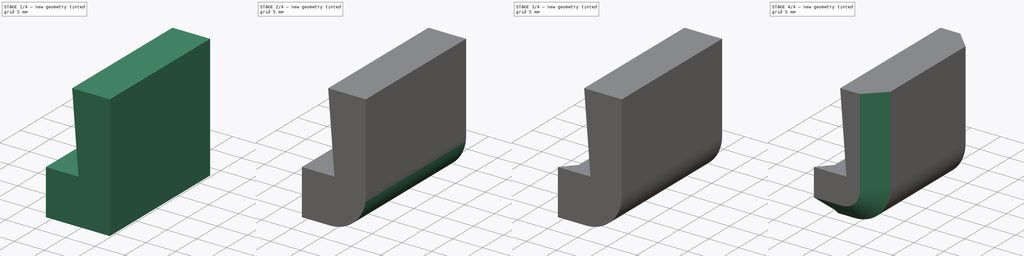
[diagram: build sequence overview — one tinted view per stage of 4, left to right]
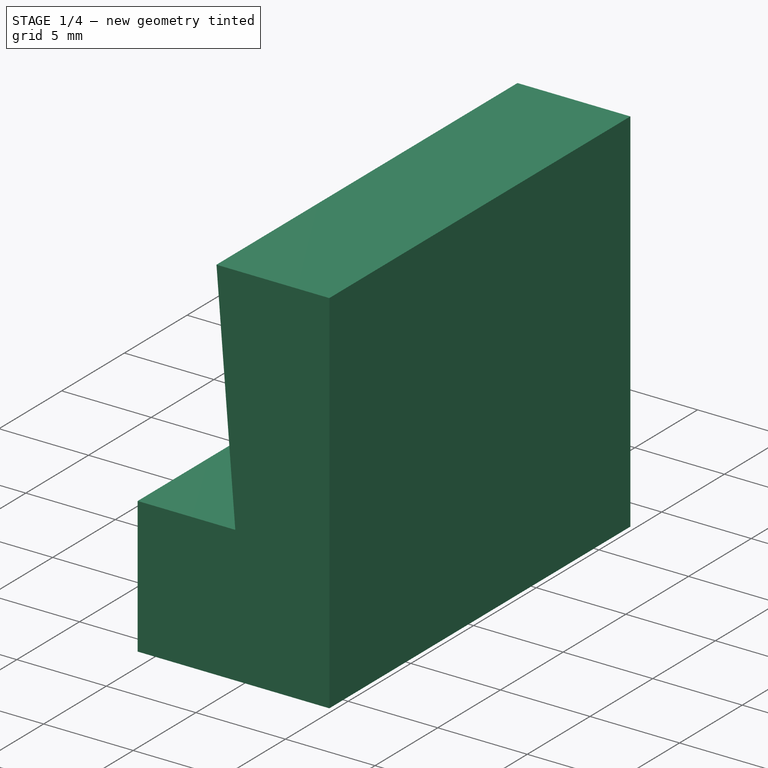
[diagram: stage 1 of 4 — iso view after this stage's code; geometry added in this stage tinted green]
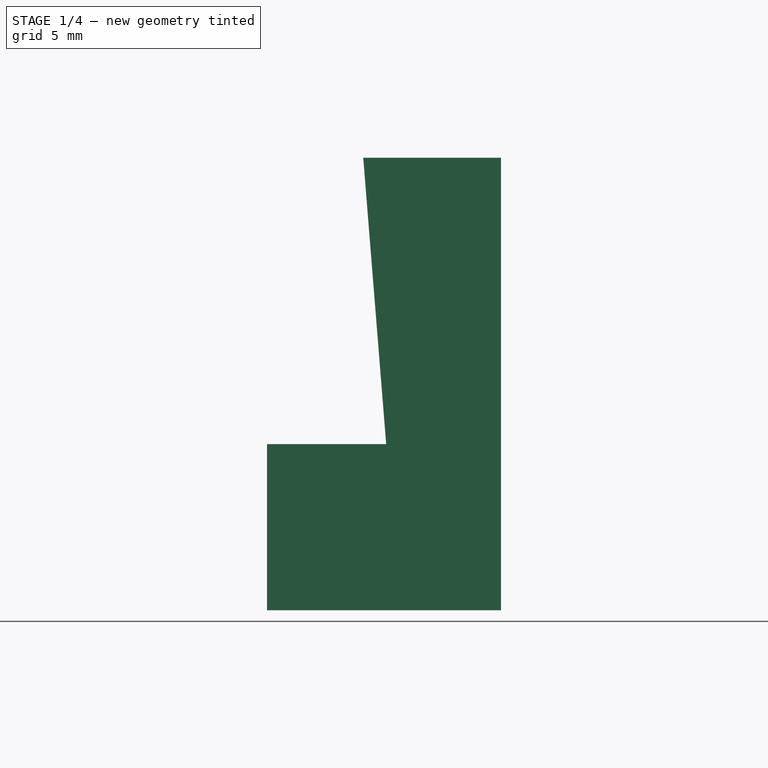
[diagram: stage 1 of 4 — front view after this stage's code; geometry added in this stage tinted green]
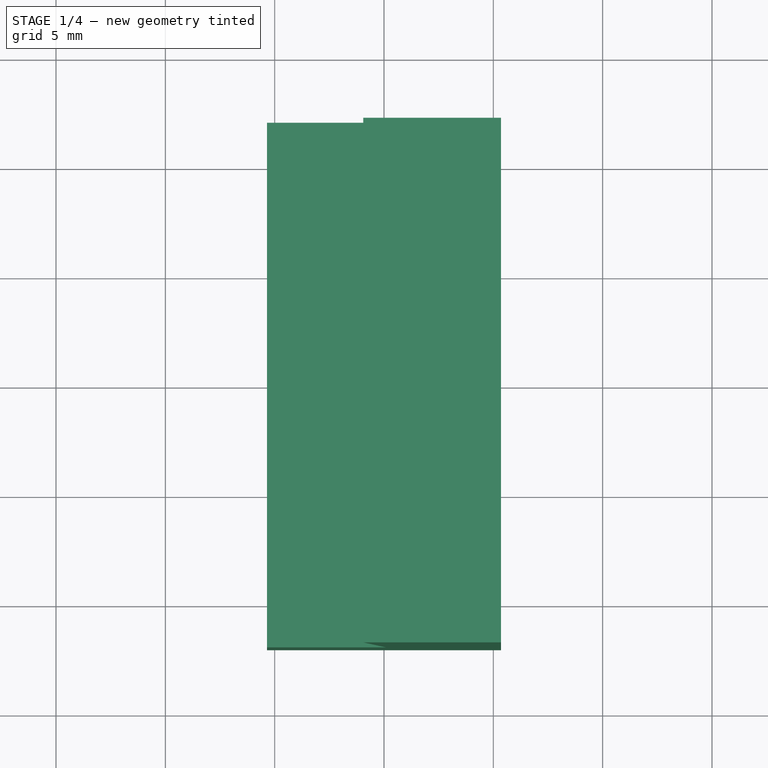
[diagram: stage 1 of 4 — top view after this stage's code; geometry added in this stage tinted green]
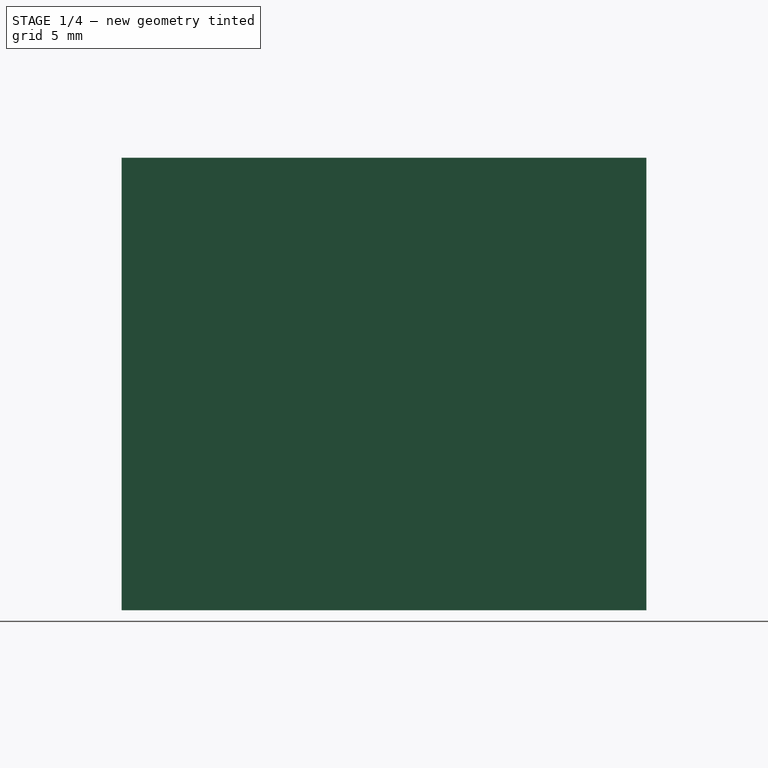
[diagram: stage 1 of 4 — right view after this stage's code; geometry added in this stage tinted green]
FCSTD DOCUMENT  (FreeCAD 0.19R24291 (Git))
Label: support_voiture
License: All rights reserved
LicenseURL: http://en.wikipedia.org/wiki/All_rights_reserved
objects: Sketcher::SketchObject×4, PartDesign::Pocket×3, PartDesign::Mirrored×2, PartDesign::Chamfer×2, PartDesign::Pad×1, PartDesign::Fillet×1, PartDesign::Body×1
note: 21 computed .brp shape members not serialized (recipe doc carries the construction recipe); baked Part::Feature solids carry a one-line shape summary decoded from their .brp

FEATURE [Sketcher::SketchObject] Sketch
  FullyConstrained = true
  MapMode = 5
  Support = -> [XY_Plane]
  sketch-geometry (4):
    g0: LineSegment StartX=-5.35 StartY=12 StartZ=0 EndX=5.35 EndY=12 EndZ=0
    g1: LineSegment StartX=5.35 StartY=12 StartZ=0 EndX=5.35 EndY=-12 EndZ=0
    g2: LineSegment StartX=5.35 StartY=-12 StartZ=0 EndX=-5.35 EndY=-12 EndZ=0
    g3: LineSegment StartX=-5.35 StartY=-12 StartZ=0 EndX=-5.35 EndY=12 EndZ=0
  constraints (10):
    c: Coincident(g0,g1)
    c: Coincident(g1,g2)
    c: Coincident(g2,g3)
    c: Coincident(g3,g0)
    c: Horizontal(g2)
    c: Vertical(g1)
    c: Symmetric(g0,g0,g-2)
    c: Symmetric(g0,g2,g-1)
    c: Distance(g0) = 10.7
    c: Distance(g3) = 24
FEATURE [PartDesign::Pad] Pad
  Direction = (1,1,1)
  Length = 20.7
  Length2 = 100
  Profile = -> Sketch
  Type = 0
FEATURE [Sketcher::SketchObject] Sketch001
  ExternalGeometry = -> [Pad]
  FullyConstrained = true
  MapMode = 5
  Placement = pos=(0,-12,0) rot=(1,0,0;1.5708rad)
  Support = -> [Pad]
  sketch-geometry (4):
    g0: LineSegment StartX=-0.95 StartY=20.7 StartZ=0 EndX=0.1 EndY=7.6 EndZ=0
    g1: LineSegment StartX=0.1 StartY=7.6 StartZ=0 EndX=-5.35 EndY=7.6 EndZ=0
    g2: LineSegment StartX=-5.35 StartY=7.6 StartZ=0 EndX=-5.35 EndY=20.7 EndZ=0
    g3: LineSegment StartX=-5.35 StartY=20.7 StartZ=0 EndX=-0.95 EndY=20.7 EndZ=0
  constraints (11):
    c: Coincident(g1,g0)
    c: PointOnObject(g1,g-3)
    c: Horizontal(g1)
    c: Distance(g-4,g1) = 7.6
    c: Distance(g0,g-5) = 5.25
    c: Coincident(g2,g1)
    c: Coincident(g2,g-6)
    c: Coincident(g3,g2)
    c: Coincident(g3,g0)
    c: Tangent(g3,g-6)
    c: Distance(g0,g2) = 4.4
FEATURE [PartDesign::Pocket] Pocket
  BaseFeature = -> Pad
  Length = 5
  Length2 = 100
  Profile = -> Sketch001
  Type = 1
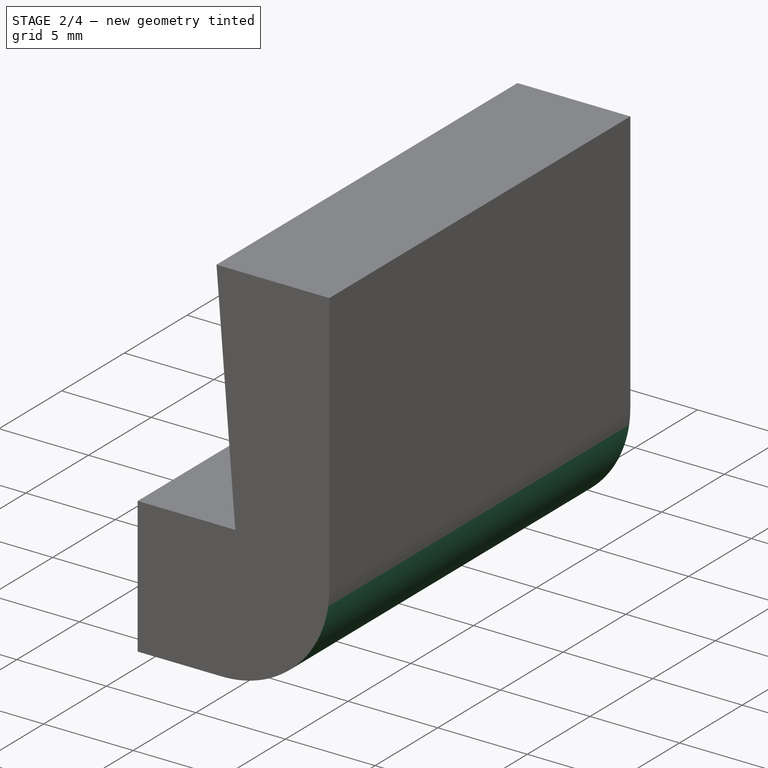
[diagram: stage 2 of 4 — iso view after this stage's code; geometry added in this stage tinted green]
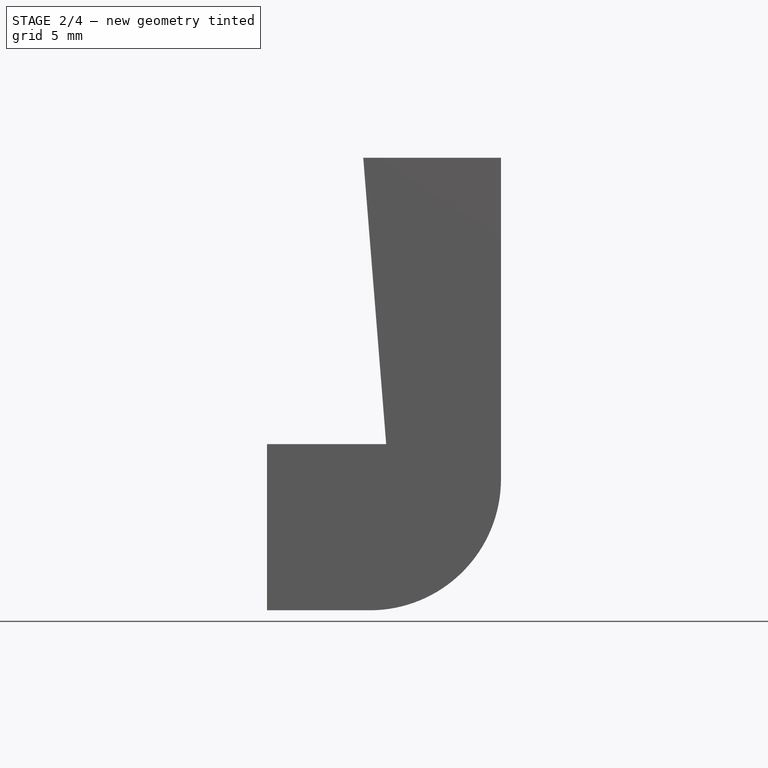
[diagram: stage 2 of 4 — front view after this stage's code; geometry added in this stage tinted green]
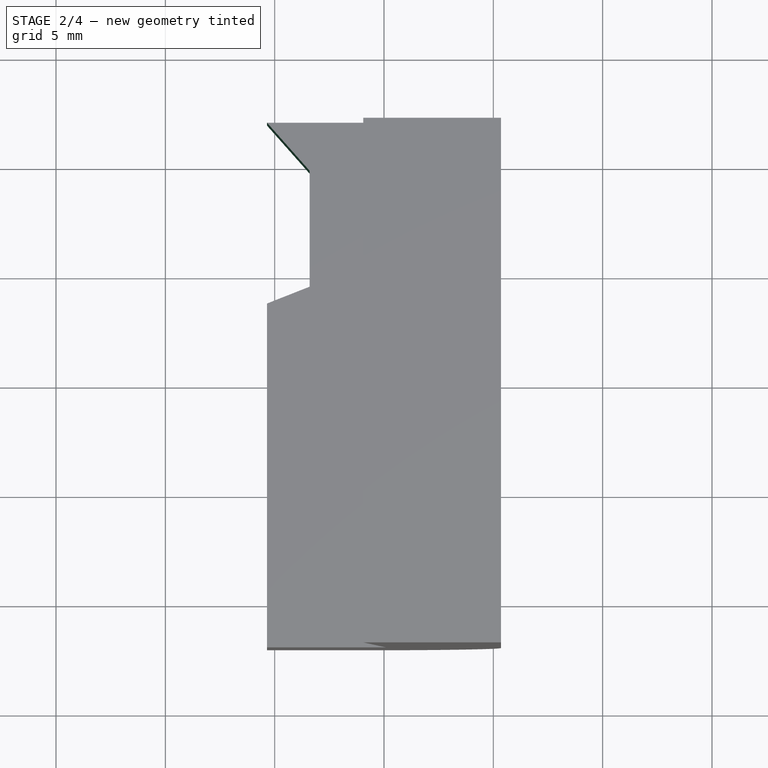
[diagram: stage 2 of 4 — top view after this stage's code; geometry added in this stage tinted green]
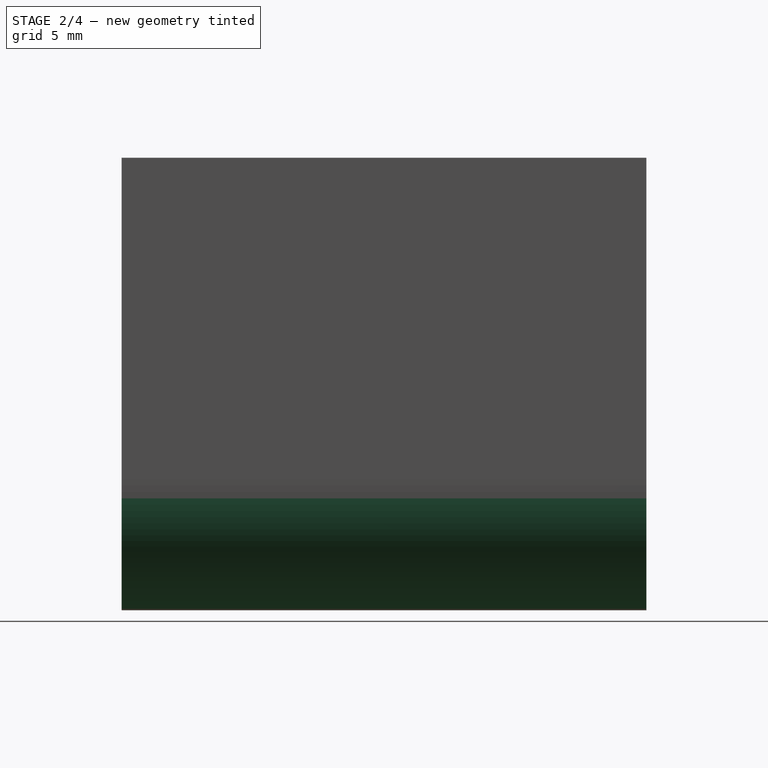
[diagram: stage 2 of 4 — right view after this stage's code; geometry added in this stage tinted green]
FEATURE [PartDesign::Fillet] Fillet
  Base = -> Pocket [Edge7]
  BaseFeature = -> Pocket
  Radius = 6
  SupportTransform = false
FEATURE [Sketcher::SketchObject] Sketch002
  ExternalGeometry = -> [Fillet]
  FullyConstrained = true
  MapMode = 5
  Placement = pos=(0,1.7e-15,7.6) rot=(0,0,1;0rad)
  Support = -> [Fillet]
  sketch-geometry (4):
    g0: LineSegment StartX=-5.35 StartY=12 StartZ=0 EndX=-3.4 EndY=9.8 EndZ=0
    g1: LineSegment StartX=-3.4 StartY=9.8 StartZ=0 EndX=-3.4 EndY=4.5 EndZ=0
    g2: LineSegment StartX=-3.4 StartY=4.5 StartZ=0 EndX=-5.35 EndY=3.73 EndZ=0
    g3: LineSegment StartX=-5.35 StartY=3.73 StartZ=0 EndX=-5.35 EndY=12 EndZ=0
  constraints (11):
    c: Coincident(g1,g0)
    c: Vertical(g1)
    c: Coincident(g2,g1)
    c: PointOnObject(g2,g-4)
    c: Coincident(g3,g2)
    c: Coincident(g3,g0)
    c: Distance(g1) = 5.3
    c: Distance(g-4,g2) = 8.27
    c: Distance(g-7,g1) = 8.75
    c: Coincident(g0,g-4)
    c: Distance(g0,g-3) = 2.2
FEATURE [PartDesign::Pocket] Pocket001
  BaseFeature = -> Fillet
  Length = 5
  Length2 = 100
  Profile = -> Sketch002
  Type = 1
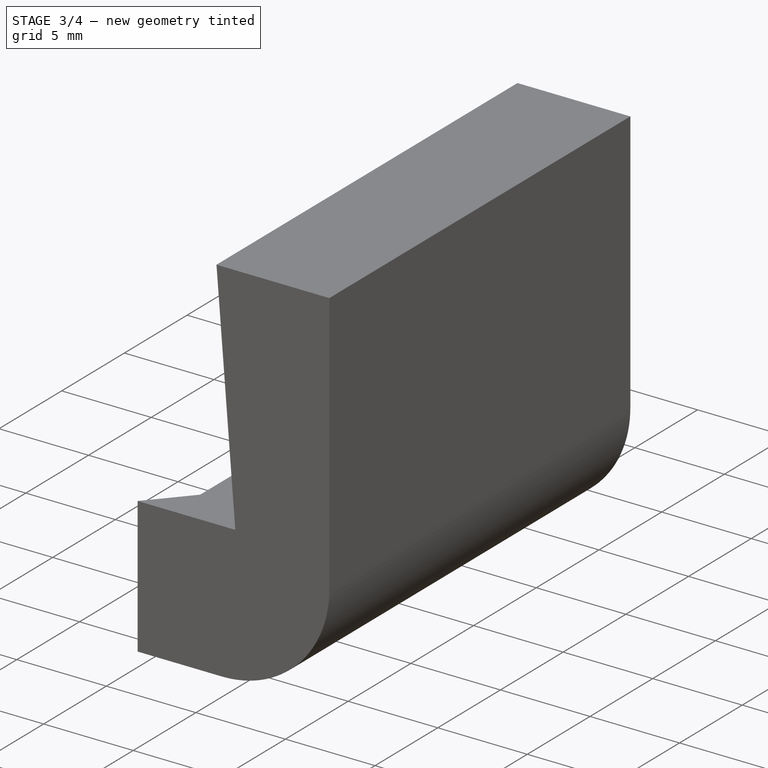
[diagram: stage 3 of 4 — iso view after this stage's code; geometry added in this stage tinted green]
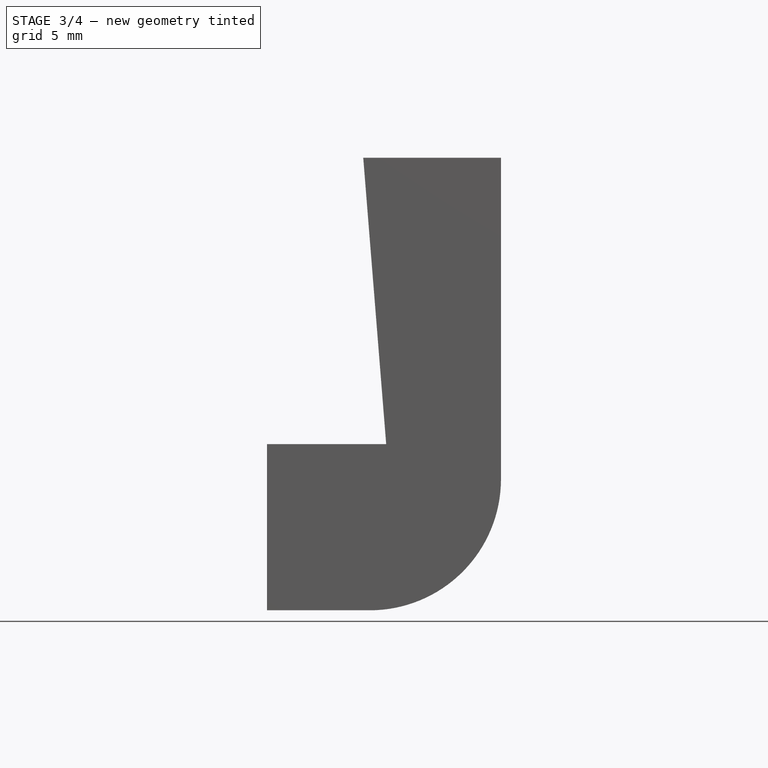
[diagram: stage 3 of 4 — front view after this stage's code; geometry added in this stage tinted green]
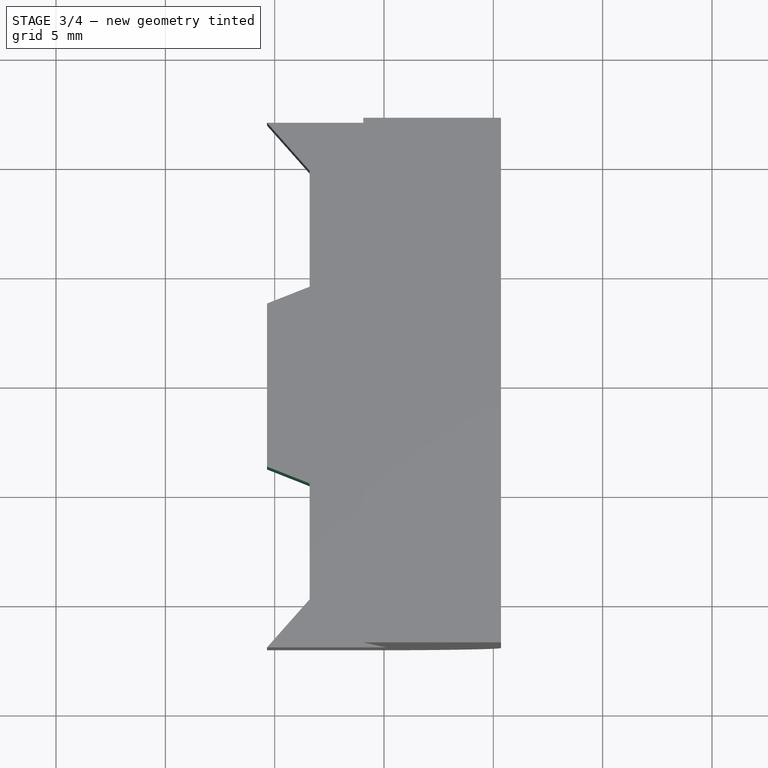
[diagram: stage 3 of 4 — top view after this stage's code; geometry added in this stage tinted green]
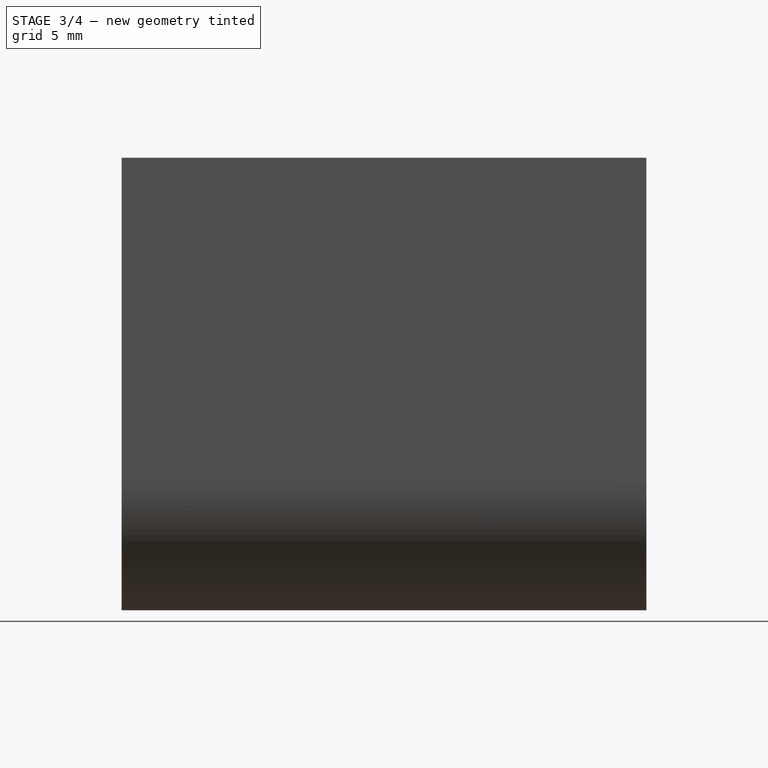
[diagram: stage 3 of 4 — right view after this stage's code; geometry added in this stage tinted green]
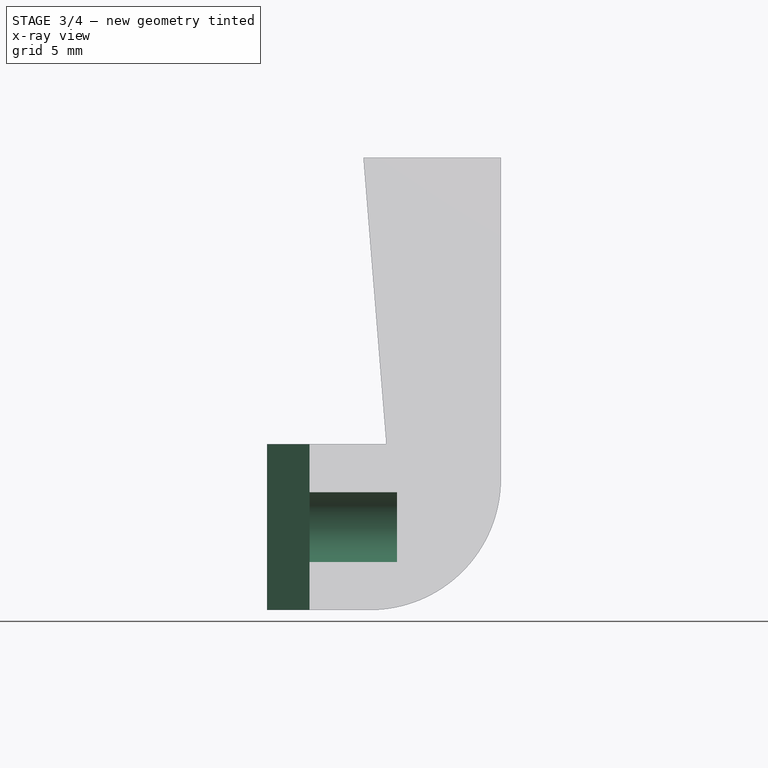
[diagram: stage 3 of 4 — x-ray composite at the front view; earlier geometry ghosted, this stage's added geometry solid]
FEATURE [PartDesign::Mirrored] Mirrored
  BaseFeature = -> Pocket001
  MirrorPlane = -> Sketch002 [H_Axis]
  Originals = -> [Pocket001]
FEATURE [Sketcher::SketchObject] Sketch003
  ExternalGeometry = -> [Mirrored]
  FullyConstrained = true
  MapMode = 5
  Placement = pos=(-3.4,0,0) rot=(0.57735,-0.57735,-0.57735;2.0944rad)
  Support = -> [Mirrored]
  sketch-geometry (1):
    g0: Circle CenterX=-7 CenterY=3.8 CenterZ=0 NormalX=0 NormalY=0 NormalZ=1 AngleXU=0 Radius=1.6
  constraints (3):
    c: Radius(g0) = 1.6
    c: Distance(g0,g-4) = 2.8
    c: Distance(g0,g-5) = 3.8
FEATURE [PartDesign::Pocket] Pocket002
  BaseFeature = -> Mirrored
  Length = 4
  Length2 = 100
  Profile = -> Sketch003
  Type = 0
FEATURE [PartDesign::Mirrored] Mirrored001
  BaseFeature = -> Pocket002
  MirrorPlane = -> Sketch003 [V_Axis]
  Originals = -> [Pocket002]
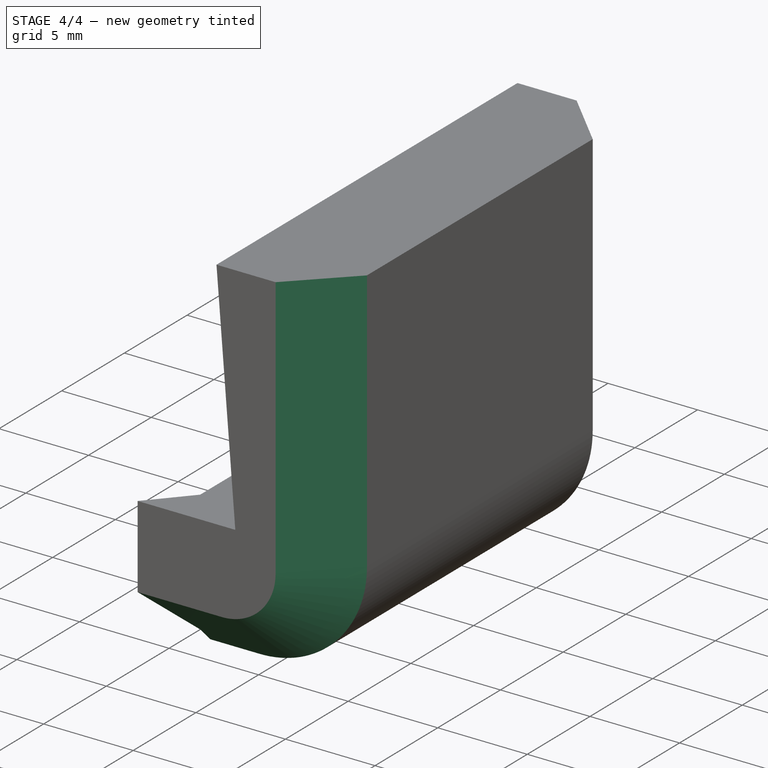
[diagram: stage 4 of 4 — iso view after this stage's code; geometry added in this stage tinted green]
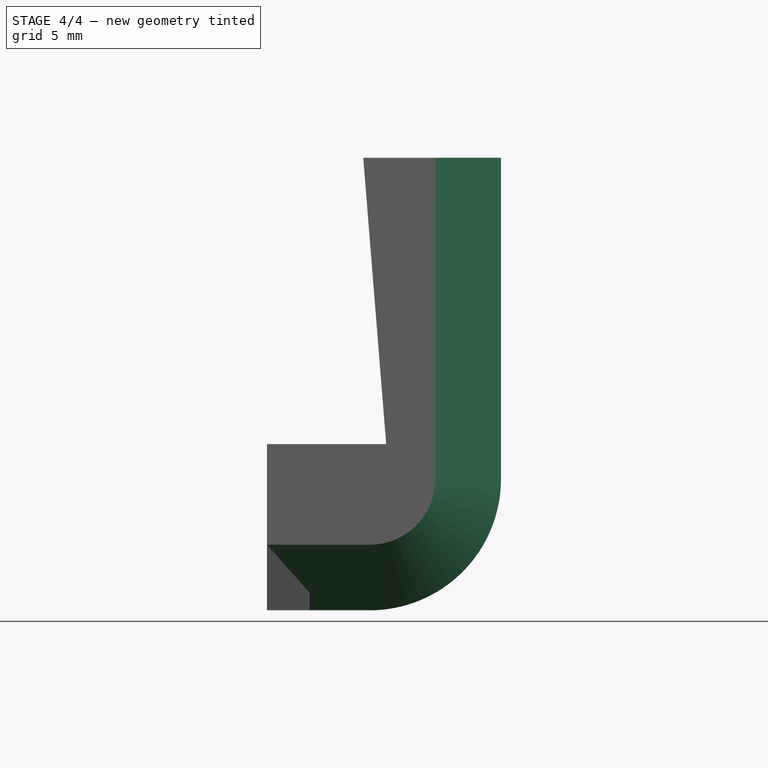
[diagram: stage 4 of 4 — front view after this stage's code; geometry added in this stage tinted green]
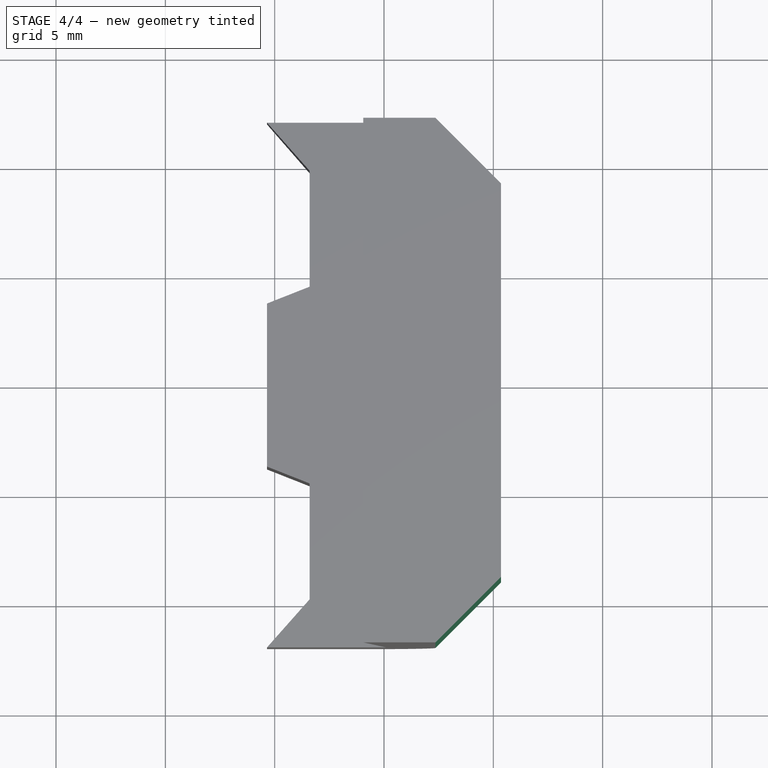
[diagram: stage 4 of 4 — top view after this stage's code; geometry added in this stage tinted green]
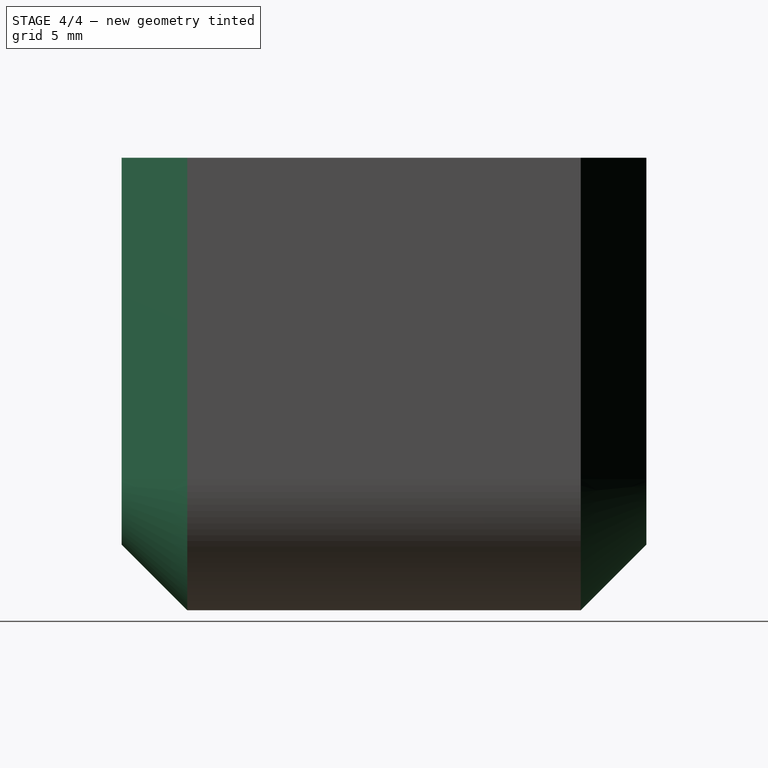
[diagram: stage 4 of 4 — right view after this stage's code; geometry added in this stage tinted green]
FEATURE [PartDesign::Chamfer] Chamfer
  Angle = 45
  Base = -> Mirrored001 [Edge22]
  BaseFeature = -> Mirrored001
  ChamferType = 0
  FlipDirection = false
  Size = 3
  Size2 = 1
  SupportTransform = false
FEATURE [PartDesign::Chamfer] Chamfer001
  Angle = 45
  Base = -> Chamfer [Edge26]
  BaseFeature = -> Chamfer
  ChamferType = 0
  FlipDirection = false
  Size = 3
  Size2 = 1
  SupportTransform = false
FEATURE [PartDesign::Body] Body
  Group = -> [Sketch,Pad,Sketch001,Pocket,Fillet,Sketch002,Pocket001,Mirrored,Sketch003,Pocket002,Mirrored001,Chamfer,Chamfer001]
  Origin = -> Origin
  Tip = -> Chamfer001
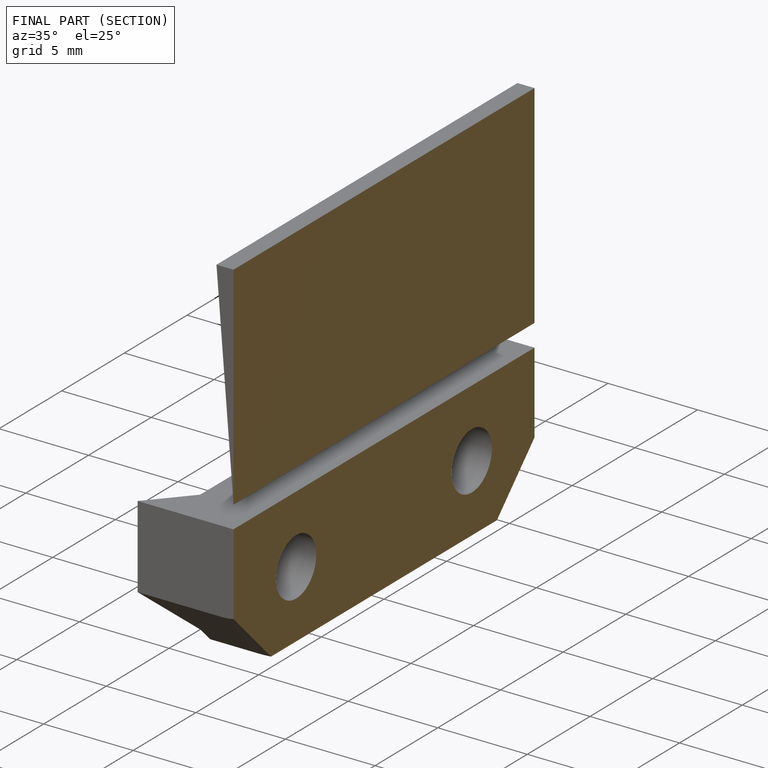
[diagram: finished part — half-section view (interior)]
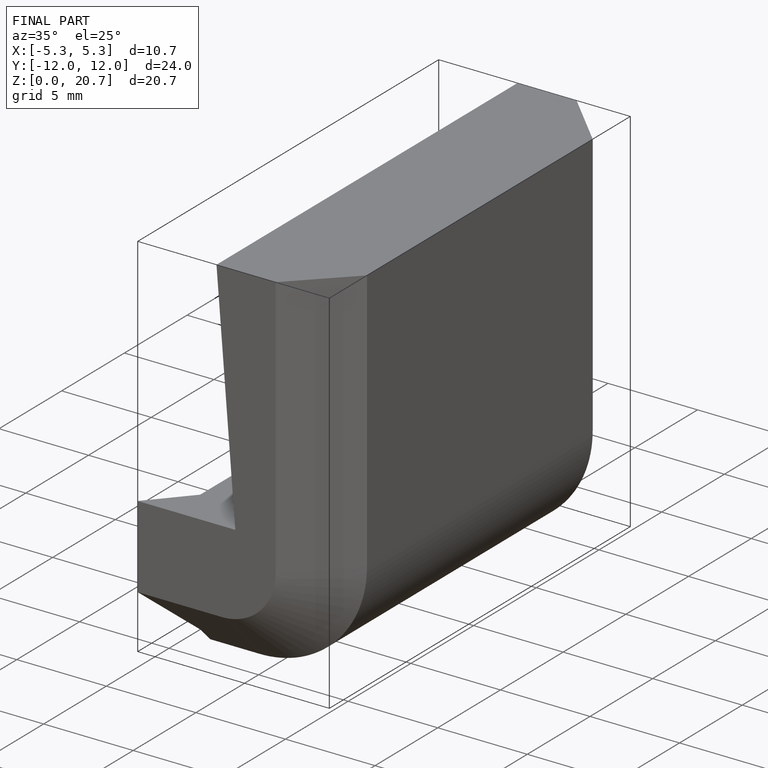
[diagram: finished part — iso view with bounding-box wireframe]
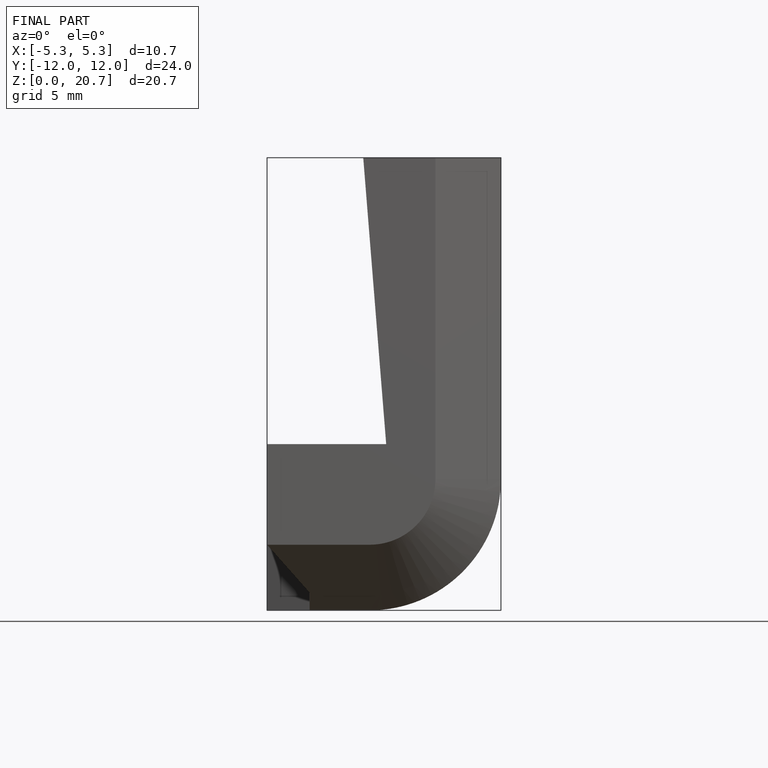
[diagram: finished part — front view with bounding-box wireframe]
